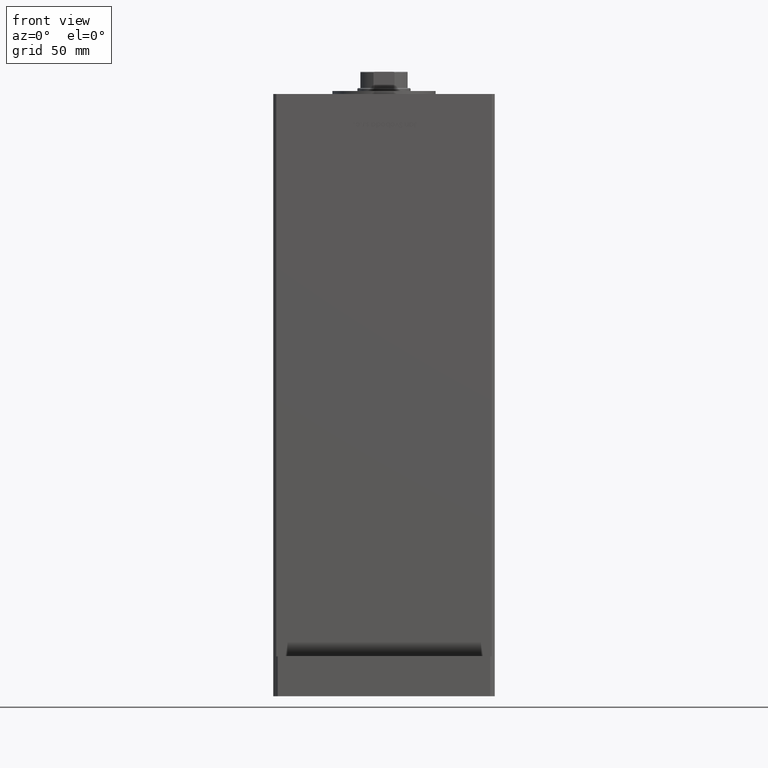
[diagram: clean part render]
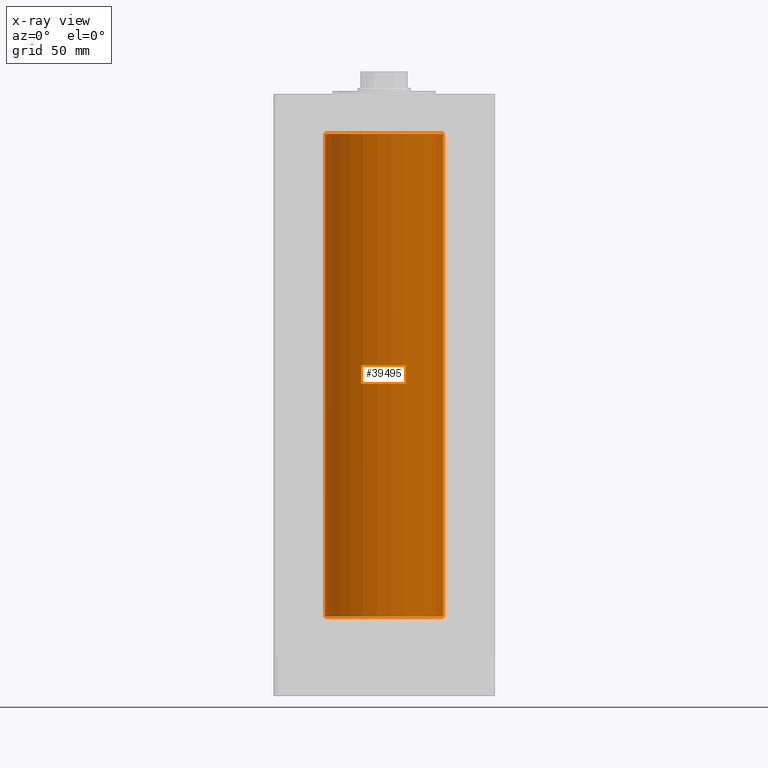
[diagram: x-ray — body ghosted, one internal face saturated and labeled with its STEP entity id]
A machine part, front view, then the same camera in x-ray: the body is ghosted and one INTERNAL B-rep face — a face not visible from any outside direction — is saturated and labeled: STEP entity #39495.
In plain terms, the highlighted cylindrical surface (partial cylindrical patch) has radius 40 mm, axis along (-0, -0, -1).
Its self-contained STEP definition (entity closure, byte-faithful):
#4138 = CARTESIAN_POINT ( 'NONE',  ( 40.00000000000000000, 4.898587196589413026E-15, 327.0000000000000000 ) ) ;
#7051 = CARTESIAN_POINT ( 'NONE',  ( 40.00000000000000000, 4.898587196589413026E-15, 327.0000000000000000 ) ) ;
#9845 = ORIENTED_EDGE ( 'NONE', *, *, #27571, .F. ) ;
#10192 = CARTESIAN_POINT ( 'NONE',  ( -40.00000000000000000, 0.000000000000000000, 0.000000000000000000 ) ) ;
#10378 = DIRECTION ( 'NONE',  ( 1.000000000000000000, 0.000000000000000000, 0.000000000000000000 ) ) ;
#12029 = EDGE_CURVE ( 'NONE', #12621, #32976, #48482, .T. ) ;
#12621 = VERTEX_POINT ( 'NONE', #49780 ) ;
#13403 = ORIENTED_EDGE ( 'NONE', *, *, #12029, .F. ) ;
#13518 = CARTESIAN_POINT ( 'NONE',  ( -40.00000000000000000, 0.000000000000000000, 327.0000000000000000 ) ) ;
#13827 = CARTESIAN_POINT ( 'NONE',  ( 0.000000000000000000, 0.000000000000000000, 327.0000000000000000 ) ) ;
#16698 = AXIS2_PLACEMENT_3D ( 'NONE', #13827, #49648, #10378 ) ;
#16964 = VECTOR ( 'NONE', #21347, 1000.000000000000000 ) ;
#17550 = CIRCLE ( 'NONE', #44057, 40.00000000000000000 ) ;
#21303 = DIRECTION ( 'NONE',  ( -0.000000000000000000, 0.000000000000000000, 1.000000000000000000 ) ) ;
#21347 = DIRECTION ( 'NONE',  ( -0.000000000000000000, -0.000000000000000000, -1.000000000000000000 ) ) ;
#25735 = VERTEX_POINT ( 'NONE', #37786 ) ;
#26303 = VERTEX_POINT ( 'NONE', #7051 ) ;
#26490 = DIRECTION ( 'NONE',  ( -1.000000000000000000, 0.000000000000000000, 0.000000000000000000 ) ) ;
#26692 = DIRECTION ( 'NONE',  ( -0.000000000000000000, -0.000000000000000000, -1.000000000000000000 ) ) ;
#27571 = EDGE_CURVE ( 'NONE', #32976, #25735, #17550, .T. ) ;
#29389 = EDGE_CURVE ( 'NONE', #12621, #26303, #32260, .T. ) ;
#30996 = DIRECTION ( 'NONE',  ( 1.000000000000000000, 0.000000000000000000, 0.000000000000000000 ) ) ;
#32260 = CIRCLE ( 'NONE', #16698, 40.00000000000000000 ) ;
#32976 = VERTEX_POINT ( 'NONE', #10192 ) ;
#37723 = ORIENTED_EDGE ( 'NONE', *, *, #42240, .T. ) ;
#37786 = CARTESIAN_POINT ( 'NONE',  ( 40.00000000000000000, 4.898587196589413026E-15, 0.000000000000000000 ) ) ;
#39495 = ADVANCED_FACE ( 'NONE', ( #48567 ), #39667, .F. ) ;
#39667 = CYLINDRICAL_SURFACE ( 'NONE', #45281, 40.00000000000000000 ) ;
#42240 = EDGE_CURVE ( 'NONE', #26303, #25735, #43395, .T. ) ;
#43395 = LINE ( 'NONE', #4138, #16964 ) ;
#44057 = AXIS2_PLACEMENT_3D ( 'NONE', #51951, #21303, #30996 ) ;
#45281 = AXIS2_PLACEMENT_3D ( 'NONE', #48269, #53154, #26490 ) ;
#45437 = EDGE_LOOP ( 'NONE', ( #56595, #37723, #9845, #13403 ) ) ;
#48269 = CARTESIAN_POINT ( 'NONE',  ( 0.000000000000000000, 0.000000000000000000, 327.0000000000000000 ) ) ;
#48482 = LINE ( 'NONE', #13518, #56543 ) ;
#48567 = FACE_OUTER_BOUND ( 'NONE', #45437, .T. ) ;
#49648 = DIRECTION ( 'NONE',  ( -0.000000000000000000, 0.000000000000000000, 1.000000000000000000 ) ) ;
#49780 = CARTESIAN_POINT ( 'NONE',  ( -40.00000000000000000, 0.000000000000000000, 327.0000000000000000 ) ) ;
#51951 = CARTESIAN_POINT ( 'NONE',  ( 0.000000000000000000, 0.000000000000000000, 0.000000000000000000 ) ) ;
#53154 = DIRECTION ( 'NONE',  ( -0.000000000000000000, -0.000000000000000000, -1.000000000000000000 ) ) ;
#56543 = VECTOR ( 'NONE', #26692, 1000.000000000000000 ) ;
#56595 = ORIENTED_EDGE ( 'NONE', *, *, #29389, .T. ) ;